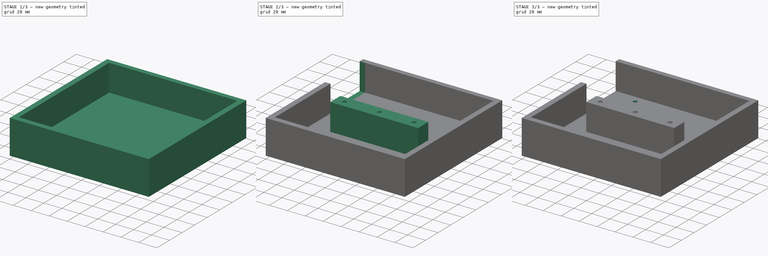
[diagram: build sequence overview — one tinted view per stage of 3, left to right]
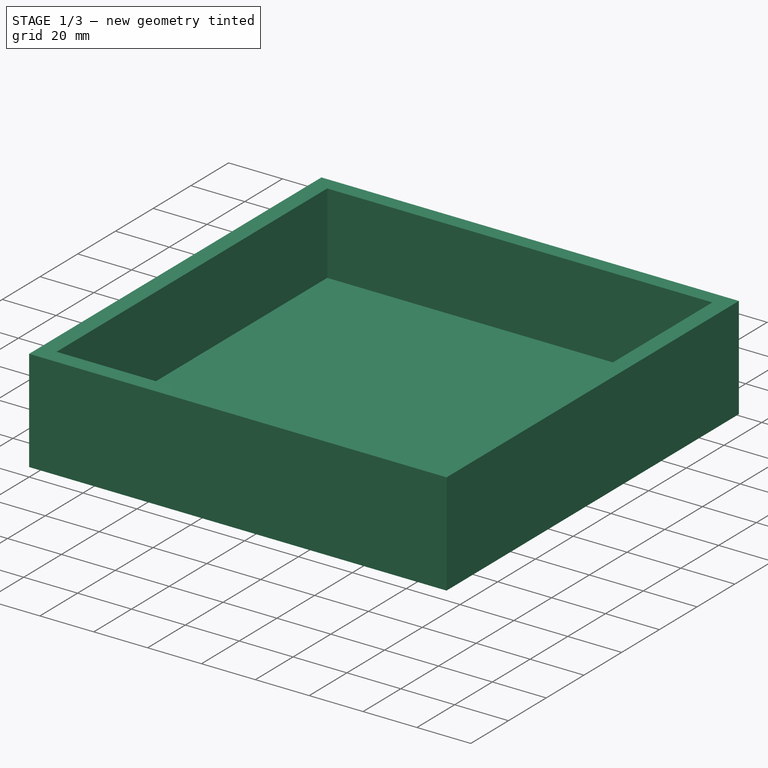
[diagram: stage 1 of 3 — iso view after this stage's code; geometry added in this stage tinted green]
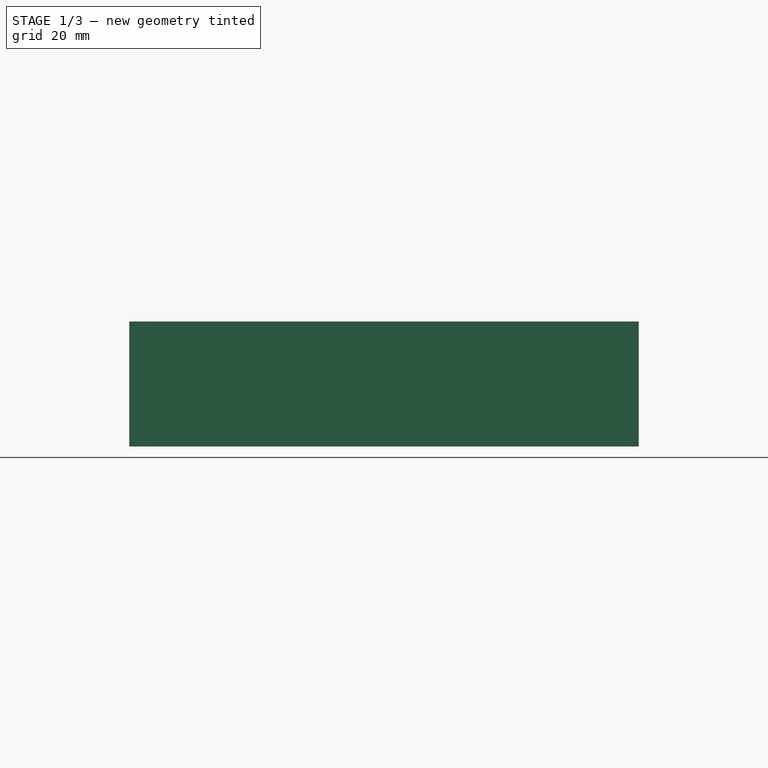
[diagram: stage 1 of 3 — front view after this stage's code; geometry added in this stage tinted green]
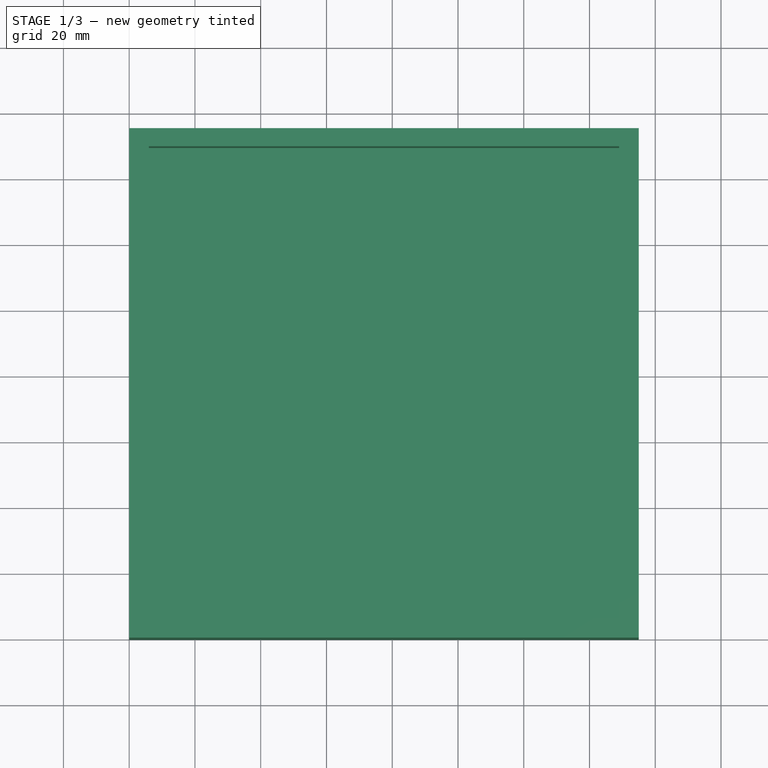
[diagram: stage 1 of 3 — top view after this stage's code; geometry added in this stage tinted green]
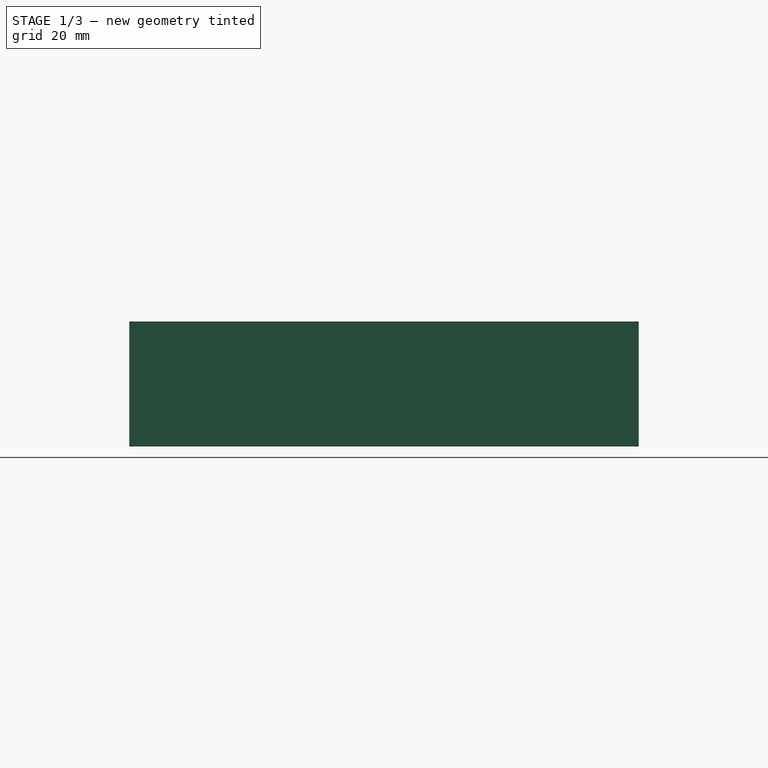
[diagram: stage 1 of 3 — right view after this stage's code; geometry added in this stage tinted green]
FCSTD DOCUMENT  (FreeCAD 0.20R29177 +426 (Git))
Label: controllerbody
License: All rights reserved
LicenseURL: http://en.wikipedia.org/wiki/All_rights_reserved
objects: Sketcher::SketchObject×7, PartDesign::Pocket×5, PartDesign::Pad×2, App::Link×1, PartDesign::Body×1
note: 22 computed .brp shape members not serialized (recipe doc carries the construction recipe); baked Part::Feature solids carry a one-line shape summary decoded from their .brp
EXTERNAL_REF file=controllerv2.FCStd obj=Body

FEATURE [Sketcher::SketchObject] Sketch
  FullyConstrained = true
  MapMode = 5
  Support = -> [XY_Plane]
  sketch-geometry (4):
    g0: LineSegment StartX=0 StartY=0 StartZ=0 EndX=155 EndY=0 EndZ=0
    g1: LineSegment StartX=155 StartY=0 StartZ=0 EndX=155 EndY=155 EndZ=0
    g2: LineSegment StartX=155 StartY=155 StartZ=0 EndX=0 EndY=155 EndZ=0
    g3: LineSegment StartX=0 StartY=155 StartZ=0 EndX=0 EndY=0 EndZ=0
  constraints (11):
    c: Coincident(g0,g1)
    c: Coincident(g1,g2)
    c: Coincident(g2,g3)
    c: Coincident(g3,g0)
    c: Horizontal(g0)
    c: Horizontal(g2)
    c: Vertical(g1)
    c: Vertical(g3)
    c: Coincident(g0,g-1)
    c: DistanceX(g2,g2) = 155
    c: DistanceY(g3,g3) = 155
FEATURE [PartDesign::Pad] Pad
  Direction = (0,0,1)
  Length = 38
  Length2 = 10
  Profile = -> Sketch
  ReferenceAxis = -> Sketch [N_Axis]
  Type = 0
FEATURE [Sketcher::SketchObject] Sketch001
  ExternalGeometry = -> [Pad]
  FullyConstrained = true
  MapMode = 5
  Placement = pos=(0,0,38) rot=(0,0,1;0rad)
  Support = -> [Pad]
  sketch-geometry (4):
    g0: LineSegment StartX=6 StartY=6 StartZ=0 EndX=149 EndY=6 EndZ=0
    g1: LineSegment StartX=149 StartY=6 StartZ=0 EndX=149 EndY=149.5 EndZ=0
    g2: LineSegment StartX=149 StartY=149.5 StartZ=0 EndX=6 EndY=149.5 EndZ=0
    g3: LineSegment StartX=6 StartY=149.5 StartZ=0 EndX=6 EndY=6 EndZ=0
  constraints (12):
    c: Coincident(g0,g1)
    c: Coincident(g1,g2)
    c: Coincident(g2,g3)
    c: Coincident(g3,g0)
    c: Horizontal(g0)
    c: Horizontal(g2)
    c: Vertical(g1)
    c: Vertical(g3)
    c: DistanceX(g-1,g0) = 6
    c: DistanceX(g1,g-3) = 6
    c: DistanceY(g1,g-3) = 5.5
    c: DistanceY(g-1,g0) = 6
FEATURE [PartDesign::Pocket] Pocket
  BaseFeature = -> Pad
  Direction = (0,0,-1)
  Length = 30
  Length2 = 5
  Profile = -> Sketch001
  ReferenceAxis = -> Sketch001 [N_Axis]
  Type = 0
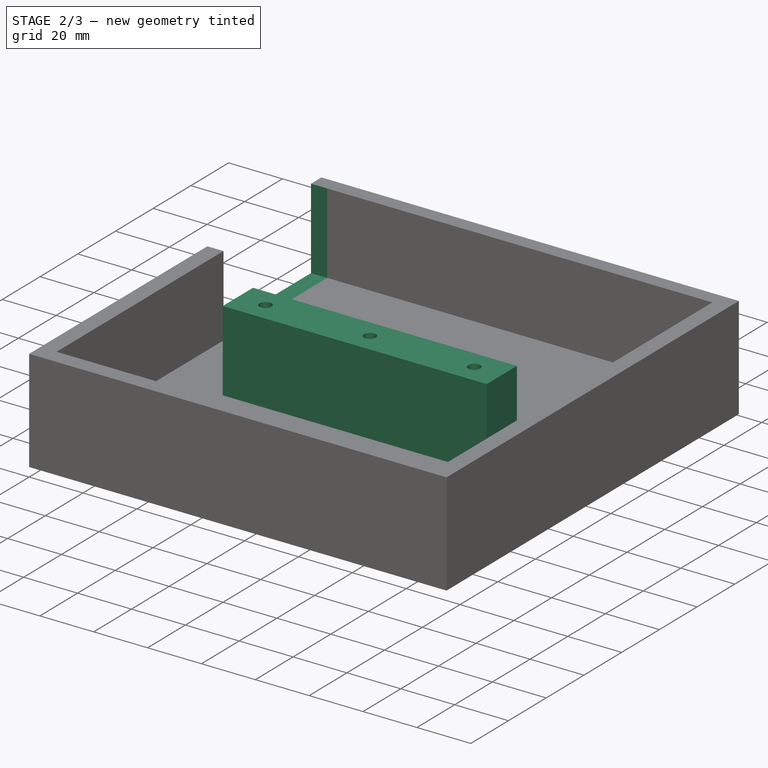
[diagram: stage 2 of 3 — iso view after this stage's code; geometry added in this stage tinted green]
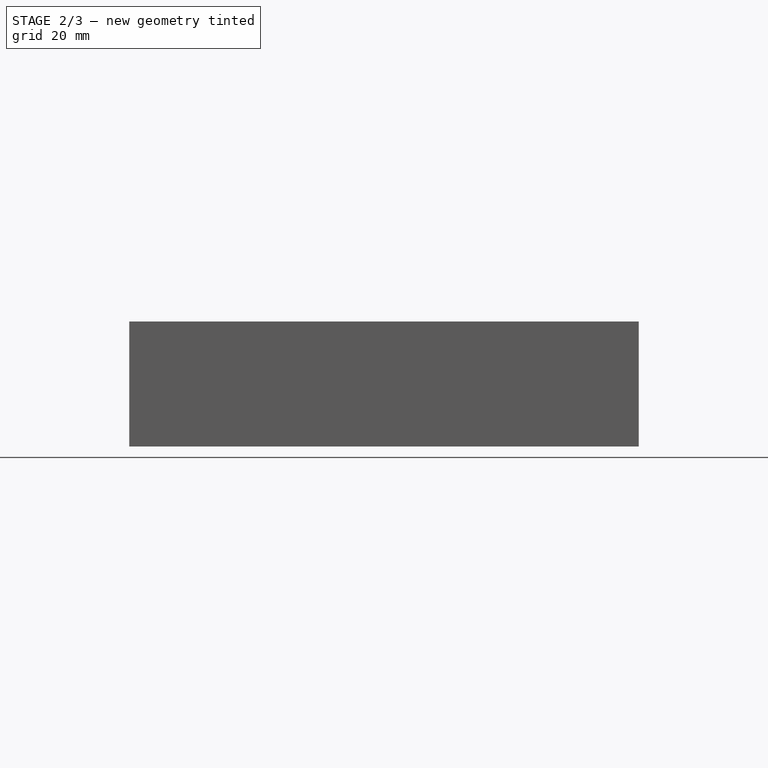
[diagram: stage 2 of 3 — front view after this stage's code; geometry added in this stage tinted green]
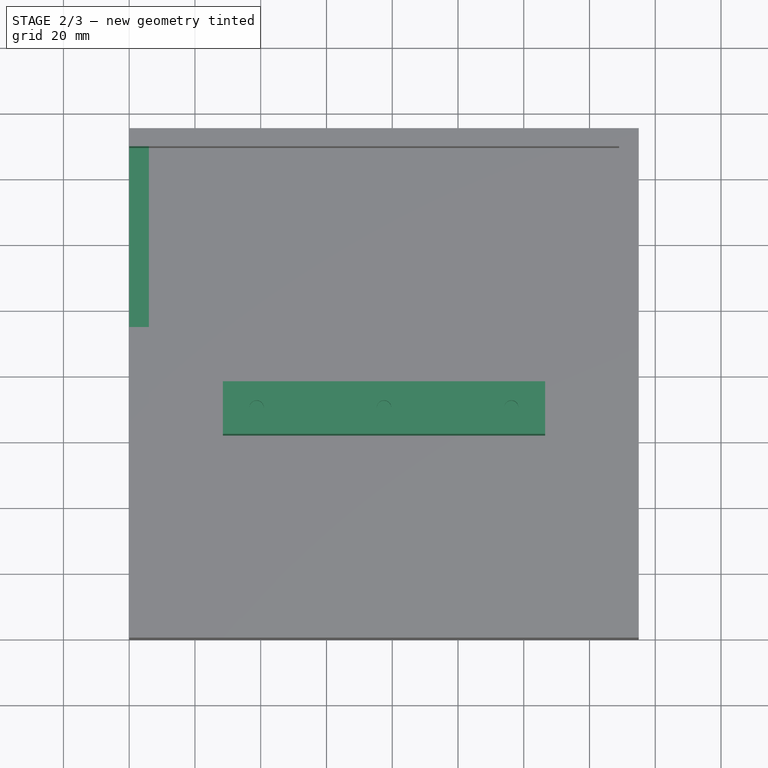
[diagram: stage 2 of 3 — top view after this stage's code; geometry added in this stage tinted green]
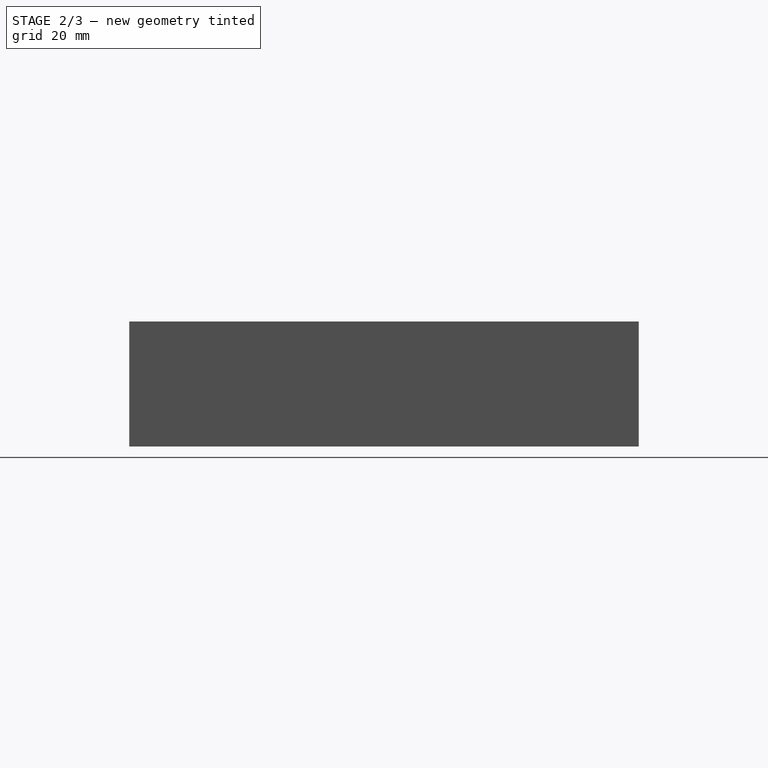
[diagram: stage 2 of 3 — right view after this stage's code; geometry added in this stage tinted green]
FEATURE [Sketcher::SketchObject] Sketch002
  ExternalGeometry = -> [Pocket]
  FullyConstrained = true
  MapMode = 5
  Placement = pos=(0,0,8) rot=(0,0,1;0rad)
  Support = -> [Pocket]
  sketch-geometry (7):
    g0: LineSegment StartX=28.5 StartY=78 StartZ=0 EndX=126.5 EndY=78 EndZ=0
    g1: LineSegment StartX=126.5 StartY=78 StartZ=0 EndX=126.5 EndY=62 EndZ=0
    g2: LineSegment StartX=126.5 StartY=62 StartZ=0 EndX=28.5 EndY=62 EndZ=0
    g3: LineSegment StartX=28.5 StartY=78 StartZ=0 EndX=28.5 EndY=70 EndZ=0
    g4: LineSegment StartX=28.5 StartY=70 StartZ=0 EndX=28.5 EndY=62 EndZ=0
    g5: LineSegment StartX=126.5 StartY=62 StartZ=0 EndX=155 EndY=62 EndZ=0
    g6: LineSegment StartX=28.5 StartY=62 StartZ=0 EndX=0 EndY=62 EndZ=0
  constraints (21):
    c: Coincident(g0,g1)
    c: Coincident(g1,g2)
    c: Horizontal(g0)
    c: Horizontal(g2)
    c: Vertical(g1)
    c: Coincident(g3,g0)
    c: Coincident(g4,g3)
    c: Coincident(g4,g2)
    c: Vertical(g3)
    c: Vertical(g4)
    c: Equal(g3,g4)
    c: DistanceY(g-1,g3) = 70
    c: DistanceX(g0,g0) = 98
    c: Coincident(g5,g1)
    c: Horizontal(g5)
    c: Coincident(g6,g2)
    c: Horizontal(g6)
    c: Vertical(g6,g-1)
    c: Vertical(g-3,g5)
    c: Equal(g6,g5)
    c: DistanceY(g1,g1) = 16
FEATURE [PartDesign::Pad] Pad001
  BaseFeature = -> Pocket
  Direction = (0,0,1)
  Length = 30
  Length2 = 10
  Profile = -> Sketch002
  ReferenceAxis = -> Sketch002 [N_Axis]
  Type = 0
FEATURE [App::Link] Link
  LinkPlacement = pos=(-3.66568e-05,-7.10192e-06,40.1) rot=(0.57735,0.57735,0.57735;4.18879rad)
  LinkedObject = -> <external controllerv2.FCStd>#Body
  Placement = pos=(-3.66568e-05,-7.10192e-06,40.1) rot=(0.57735,0.57735,0.57735;4.18879rad)
FEATURE [Sketcher::SketchObject] Sketch003
  ExternalGeometry = -> [Pad001]
  FullyConstrained = true
  MapMode = 5
  Placement = pos=(0,0,38) rot=(0,0,1;0rad)
  Support = -> [Pad001]
  sketch-geometry (7):
    g0: Circle CenterX=38.75 CenterY=70 CenterZ=0 NormalX=0 NormalY=0 NormalZ=1 AngleXU=0 Radius=2.2
    g1: Circle CenterX=77.5 CenterY=70 CenterZ=0 NormalX=0 NormalY=0 NormalZ=1 AngleXU=0 Radius=2.2
    g2: Circle CenterX=116.25 CenterY=70 CenterZ=0 NormalX=0 NormalY=0 NormalZ=1 AngleXU=0 Radius=2.2
    g3: LineSegment StartX=38.75 StartY=70 StartZ=0 EndX=0 EndY=70 EndZ=0
    g4: LineSegment StartX=38.75 StartY=70 StartZ=0 EndX=77.5 EndY=70 EndZ=0
    g5: LineSegment StartX=77.5 StartY=70 StartZ=0 EndX=116.25 EndY=70 EndZ=0
    g6: LineSegment StartX=116.25 StartY=70 StartZ=0 EndX=155 EndY=70 EndZ=0
  constraints (19):
    c: Horizontal(g0,g-3)
    c: Horizontal(g0,g1)
    c: Horizontal(g1,g2)
    c: Radius(g0) = 2.2
    c: Equal(g0,g1)
    c: Equal(g1,g2)
    c: Coincident(g3,g0)
    c: PointOnObject(g3,g-2)
    c: Horizontal(g3)
    c: Coincident(g4,g0)
    c: Coincident(g4,g1)
    c: Coincident(g5,g1)
    c: Coincident(g5,g2)
    c: Equal(g4,g3)
    c: Equal(g4,g5)
    c: Coincident(g6,g2)
    c: Horizontal(g6)
    c: Vertical(g6,g-4)
    c: Equal(g6,g5)
FEATURE [PartDesign::Pocket] Pocket001
  BaseFeature = -> Pad001
  Direction = (0,0,-1)
  Length = 6
  Length2 = 5
  Profile = -> Sketch003
  ReferenceAxis = -> Sketch003 [N_Axis]
  Type = 0
FEATURE [Sketcher::SketchObject] Sketch004
  ExternalGeometry = -> [Pocket001]
  FullyConstrained = true
  MapMode = 5
  Placement = pos=(0,0,38) rot=(0,0,1;0rad)
  Support = -> [Pocket001]
  sketch-geometry (4):
    g0: LineSegment StartX=0 StartY=149.5 StartZ=0 EndX=6 EndY=149.5 EndZ=0
    g1: LineSegment StartX=6 StartY=149.5 StartZ=0 EndX=6 EndY=94.5 EndZ=0
    g2: LineSegment StartX=6 StartY=94.5 StartZ=0 EndX=0 EndY=94.5 EndZ=0
    g3: LineSegment StartX=0 StartY=94.5 StartZ=0 EndX=0 EndY=149.5 EndZ=0
  constraints (12):
    c: Coincident(g0,g1)
    c: Coincident(g1,g2)
    c: Coincident(g2,g3)
    c: Coincident(g3,g0)
    c: Horizontal(g0)
    c: Horizontal(g2)
    c: Vertical(g1)
    c: Vertical(g3)
    c: PointOnObject(g0,g-4)
    c: PointOnObject(g1,g-3)
    c: Horizontal(g-3,g0)
    c: DistanceY(g3,g3) = 55
FEATURE [PartDesign::Pocket] Pocket002
  BaseFeature = -> Pocket001
  Direction = (0,0,-1)
  Length = 0
  Length2 = 5
  Profile = -> Sketch004
  ReferenceAxis = -> Sketch004 [N_Axis]
  Type = 3
  UpToFace = -> Pocket001 [Face11]
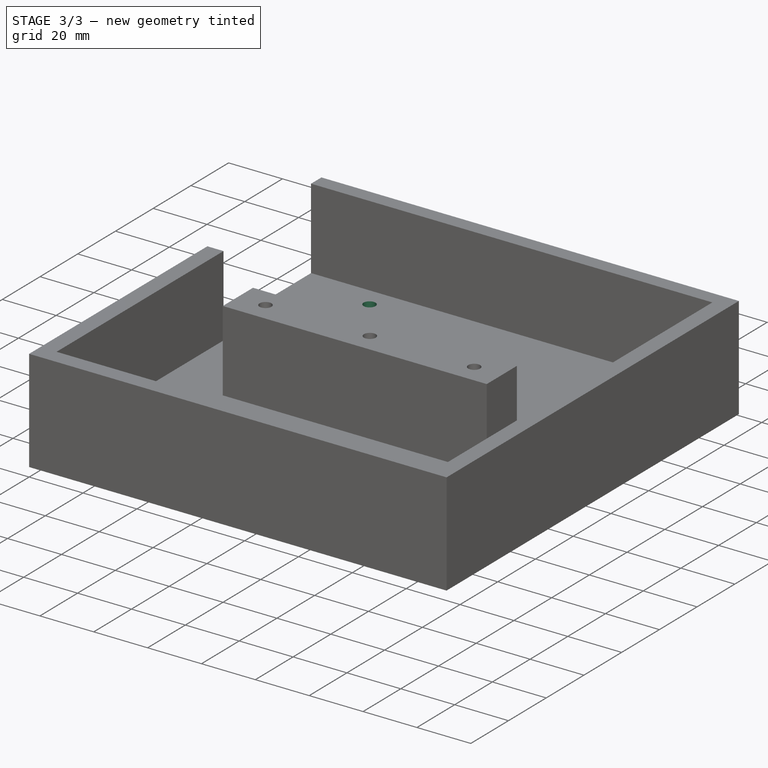
[diagram: stage 3 of 3 — iso view after this stage's code; geometry added in this stage tinted green]
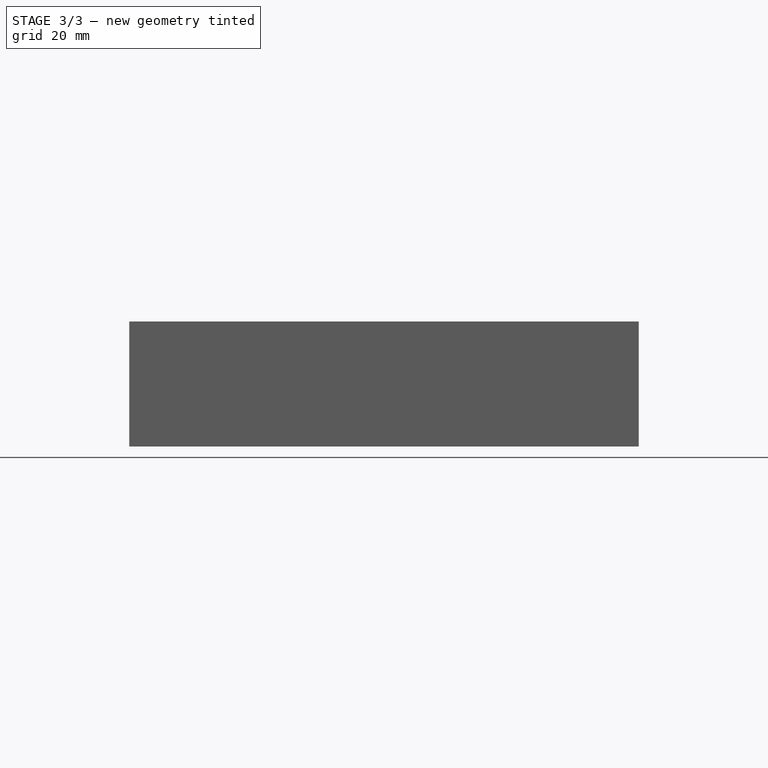
[diagram: stage 3 of 3 — front view after this stage's code; geometry added in this stage tinted green]
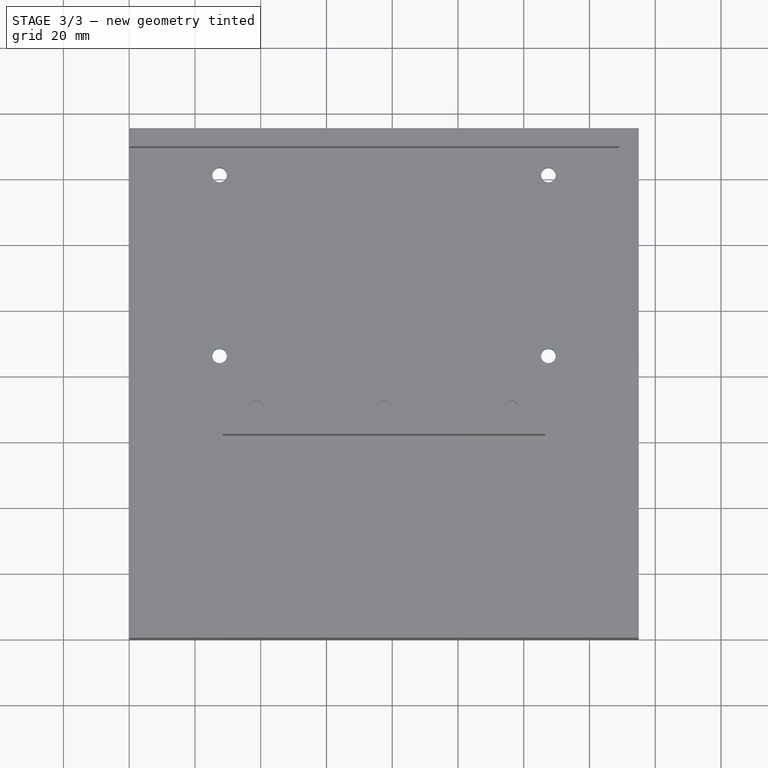
[diagram: stage 3 of 3 — top view after this stage's code; geometry added in this stage tinted green]
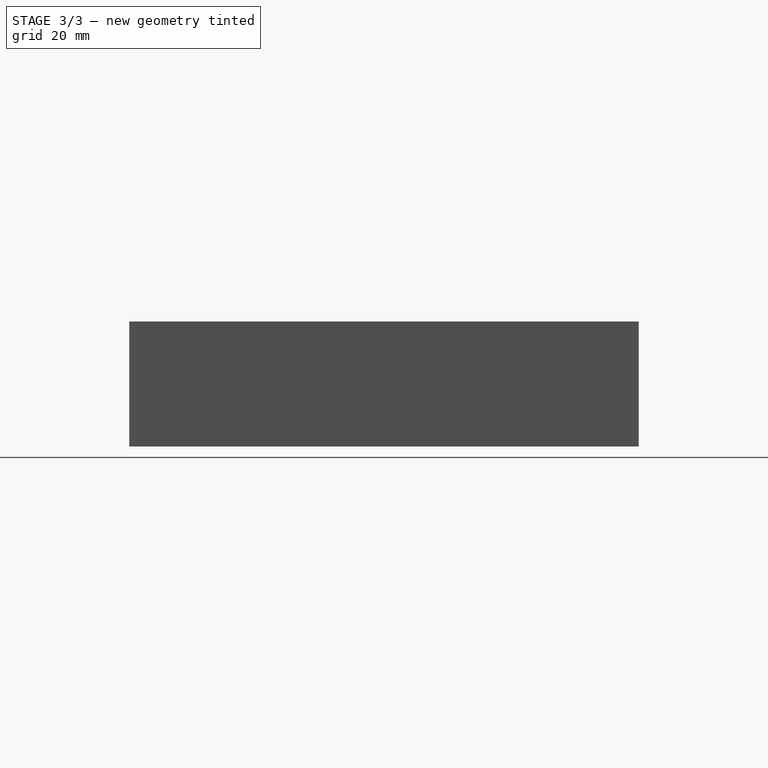
[diagram: stage 3 of 3 — right view after this stage's code; geometry added in this stage tinted green]
FEATURE [Sketcher::SketchObject] Sketch005
  ExternalGeometry = -> [Pocket002]
  FullyConstrained = true
  MapMode = 5
  Placement = pos=(0,0,0) rot=(1,0,0;3.14159rad)
  Support = -> [Pocket002]
  sketch-geometry (23):
    g0: Circle CenterX=25.8333 CenterY=-130 CenterZ=0 NormalX=0 NormalY=0 NormalZ=1 AngleXU=0 Radius=2.2
    g1: Circle CenterX=51.6667 CenterY=-130 CenterZ=0 NormalX=0 NormalY=0 NormalZ=1 AngleXU=0 Radius=2.2
    g2: Circle CenterX=77.5 CenterY=-130 CenterZ=0 NormalX=0 NormalY=0 NormalZ=1 AngleXU=0 Radius=2.2
    g3: Circle CenterX=103.333 CenterY=-130 CenterZ=0 NormalX=0 NormalY=0 NormalZ=1 AngleXU=0 Radius=2.2
    g4: Circle CenterX=129.167 CenterY=-130 CenterZ=0 NormalX=0 NormalY=0 NormalZ=1 AngleXU=0 Radius=2.2
    g5: Circle CenterX=25.8333 CenterY=-77.5 CenterZ=0 NormalX=0 NormalY=0 NormalZ=1 AngleXU=0 Radius=2.2
    g6: Circle CenterX=51.6667 CenterY=-77.5 CenterZ=0 NormalX=0 NormalY=0 NormalZ=1 AngleXU=0 Radius=2.2
    g7: Circle CenterX=77.5 CenterY=-77.5 CenterZ=0 NormalX=0 NormalY=0 NormalZ=1 AngleXU=0 Radius=2.2
    g8: Circle CenterX=103.333 CenterY=-77.5 CenterZ=0 NormalX=0 NormalY=0 NormalZ=1 AngleXU=0 Radius=2.2
    g9: Circle CenterX=129.167 CenterY=-77.5 CenterZ=0 NormalX=0 NormalY=0 NormalZ=1 AngleXU=0 Radius=2.2
    g10: Circle CenterX=25.8333 CenterY=-25 CenterZ=0 NormalX=0 NormalY=0 NormalZ=1 AngleXU=0 Radius=2.2
    g11: Circle CenterX=51.6667 CenterY=-25 CenterZ=0 NormalX=0 NormalY=0 NormalZ=1 AngleXU=0 Radius=2.2
    g12: Circle CenterX=77.5 CenterY=-25 CenterZ=0 NormalX=0 NormalY=0 NormalZ=1 AngleXU=0 Radius=2.2
    g13: Circle CenterX=103.333 CenterY=-25 CenterZ=0 NormalX=0 NormalY=0 NormalZ=1 AngleXU=0 Radius=2.2
    g14: Circle CenterX=129.167 CenterY=-25 CenterZ=0 NormalX=0 NormalY=0 NormalZ=1 AngleXU=0 Radius=2.2
    g15: LineSegment StartX=0 StartY=-155 StartZ=0 EndX=25.8333 EndY=-155 EndZ=0
    g16: LineSegment StartX=25.8333 StartY=-155 StartZ=0 EndX=51.6667 EndY=-155 EndZ=0
    g17: LineSegment StartX=51.6667 StartY=-155 StartZ=0 EndX=77.5 EndY=-155 EndZ=0
    g18: LineSegment StartX=77.5 StartY=-155 StartZ=0 EndX=103.333 EndY=-155 EndZ=0
    g19: LineSegment StartX=103.333 StartY=-155 StartZ=0 EndX=129.167 EndY=-155 EndZ=0
    g20: LineSegment StartX=129.167 StartY=-155 StartZ=0 EndX=155 EndY=-155 EndZ=0
    g21: LineSegment StartX=25.8333 StartY=-25 StartZ=0 EndX=25.8333 EndY=-77.5 EndZ=0
    g22: LineSegment StartX=25.8333 StartY=-77.5 StartZ=0 EndX=25.8333 EndY=-130 EndZ=0
  constraints (67):
    c: Horizontal(g7,g6)
    c: Horizontal(g6,g5)
    c: Horizontal(g7,g8)
    c: Horizontal(g8,g9)
    c: Horizontal(g0,g1)
    c: Horizontal(g1,g2)
    c: Horizontal(g2,g3)
    c: Horizontal(g3,g4)
    c: PointOnObject(g15,g-2)
    c: Coincident(g16,g15)
    c: Horizontal(g16)
    c: Coincident(g17,g16)
    c: Horizontal(g17)
    c: Coincident(g18,g17)
    c: Horizontal(g18)
    c: Coincident(g19,g18)
    c: Coincident(g20,g19)
    c: Coincident(g20,g-3)
    c: Horizontal(g15)
    c: Horizontal(g19)
    c: Horizontal(g20)
    c: Equal(g16,g15)
    c: Equal(g16,g17)
    c: Equal(g18,g19)
    c: Equal(g19,g20)
    c: Equal(g20,g16)
    c: Vertical(g0,g5)
    c: Vertical(g5,g10)
    c: Vertical(g0,g15)
    c: Vertical(g16,g1)
    c: Vertical(g1,g6)
    c: Vertical(g6,g11)
    c: Vertical(g12,g7)
    c: Vertical(g7,g2)
    c: Vertical(g17,g2)
    c: Vertical(g18,g3)
    c: Vertical(g3,g8)
    c: Vertical(g8,g13)
    c: Vertical(g14,g9)
    c: Vertical(g9,g4)
    c: Vertical(g4,g19)
    c: Horizontal(g10,g11)
    c: Horizontal(g11,g12)
    c: Horizontal(g12,g13)
    c: Horizontal(g13,g14)
    c: Equal(g10,g11)
    c: Equal(g11,g12)
    c: Equal(g12,g13)
    c: Equal(g13,g14)
    c: Equal(g9,g14)
    c: Equal(g9,g4)
    c: Equal(g9,g8)
    c: Equal(g8,g7)
    c: Equal(g7,g6)
    c: Equal(g6,g5)
    c: Equal(g0,g1)
    c: Equal(g1,g2)
    c: Equal(g2,g3)
    c: Equal(g3,g4)
    c: Radius(g5) = 2.2
    c: DistanceY(g15,g0) = 25
    c: DistanceY(g10,g-1) = 25
    c: Coincident(g21,g10)
    c: Coincident(g21,g5)
    c: Coincident(g22,g5)
    c: Coincident(g22,g0)
    c: Equal(g21,g22)
FEATURE [PartDesign::Pocket] Pocket003
  BaseFeature = -> Pocket002
  Direction = (0,0,1)
  Length = 7
  Length2 = 5
  Profile = -> Sketch005
  ReferenceAxis = -> Sketch005 [N_Axis]
  Type = 0
FEATURE [Sketcher::SketchObject] Sketch006
  ExternalGeometry = -> [Pocket003]
  FullyConstrained = true
  MapMode = 5
  Placement = pos=(0,0,8) rot=(0,0,1;0rad)
  Support = -> [Pocket003]
  sketch-geometry (12):
    g0: LineSegment StartX=27.5 StartY=141.25 StartZ=0 EndX=127.5 EndY=141.25 EndZ=0
    g1: LineSegment StartX=127.5 StartY=141.25 StartZ=0 EndX=127.5 EndY=86.25 EndZ=0
    g2: LineSegment StartX=127.5 StartY=86.25 StartZ=0 EndX=27.5 EndY=86.25 EndZ=0
    g3: LineSegment StartX=27.5 StartY=86.25 StartZ=0 EndX=27.5 EndY=141.25 EndZ=0
    g4: Circle CenterX=27.5 CenterY=141.25 CenterZ=0 NormalX=0 NormalY=0 NormalZ=1 AngleXU=0 Radius=2.2
    g5: Circle CenterX=127.5 CenterY=141.25 CenterZ=0 NormalX=0 NormalY=0 NormalZ=1 AngleXU=0 Radius=2.2
    g6: Circle CenterX=127.5 CenterY=86.25 CenterZ=0 NormalX=0 NormalY=0 NormalZ=1 AngleXU=0 Radius=2.2
    g7: Circle CenterX=27.5 CenterY=86.25 CenterZ=0 NormalX=0 NormalY=0 NormalZ=1 AngleXU=0 Radius=2.2
    g8: LineSegment StartX=127.5 StartY=86.25 StartZ=0 EndX=155 EndY=86.25 EndZ=0
    g9: LineSegment StartX=27.5 StartY=86.25 StartZ=0 EndX=0 EndY=86.25 EndZ=0
    g10: LineSegment StartX=27.5 StartY=141.25 StartZ=0 EndX=27.5 EndY=149.5 EndZ=0
    g11: LineSegment StartX=28.5 StartY=78 StartZ=0 EndX=28.5 EndY=86.25 EndZ=0
  constraints (32):
    c: Coincident(g0,g1)
    c: Coincident(g1,g2)
    c: Coincident(g2,g3)
    c: Coincident(g3,g0)
    c: Horizontal(g0)
    c: Horizontal(g2)
    c: Vertical(g1)
    c: Vertical(g3)
    c: Coincident(g4,g0)
    c: Coincident(g5,g0)
    c: Coincident(g6,g1)
    c: Coincident(g7,g2)
    c: DistanceX(g0,g0) = 100
    c: DistanceY(g3,g3) = 55
    c: Coincident(g8,g1)
    c: Horizontal(g8)
    c: Coincident(g9,g2)
    c: Horizontal(g9)
    c: Vertical(g9,g-1)
    c: Vertical(g-3,g8)
    c: Coincident(g10,g0)
    c: PointOnObject(g10,g-4)
    c: Vertical(g10)
    c: Equal(g9,g8)
    c: Coincident(g11,g-5)
    c: PointOnObject(g11,g2)
    c: Vertical(g11)
    c: Equal(g11,g10)
    c: Equal(g7,g4)
    c: Equal(g4,g5)
    c: Equal(g6,g5)
    c: Radius(g4) = 2.2
FEATURE [PartDesign::Pocket] Pocket004
  BaseFeature = -> Pocket003
  Direction = (0,0,-1)
  Length = 8
  Length2 = 5
  Profile = -> Sketch006
  ReferenceAxis = -> Sketch006 [N_Axis]
  Type = 0
FEATURE [PartDesign::Body] Body
  Group = -> [Sketch,Pad,Sketch001,Pocket,Sketch002,Pad001,Sketch003,Pocket001,Sketch004,Pocket002,Sketch005,Pocket003,Sketch006,Pocket004]
  Origin = -> Origin
  Tip = -> Pocket004
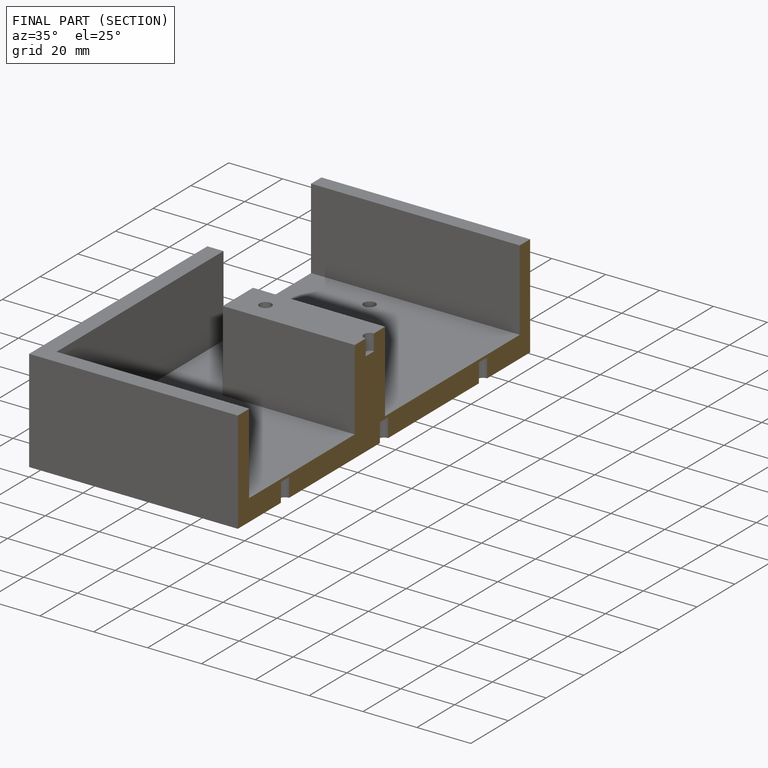
[diagram: finished part — half-section view (interior)]
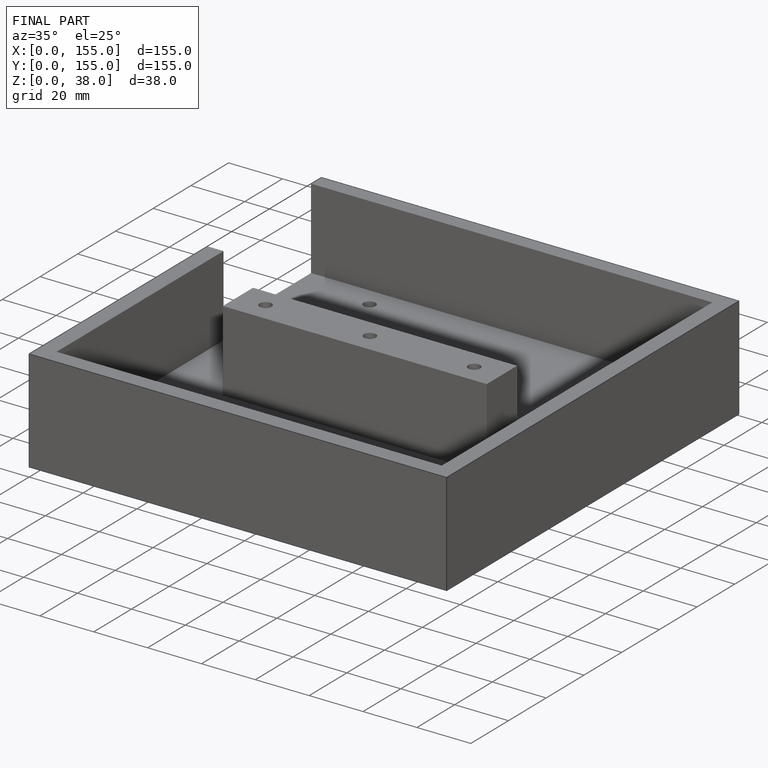
[diagram: finished part — iso view with bounding-box wireframe]
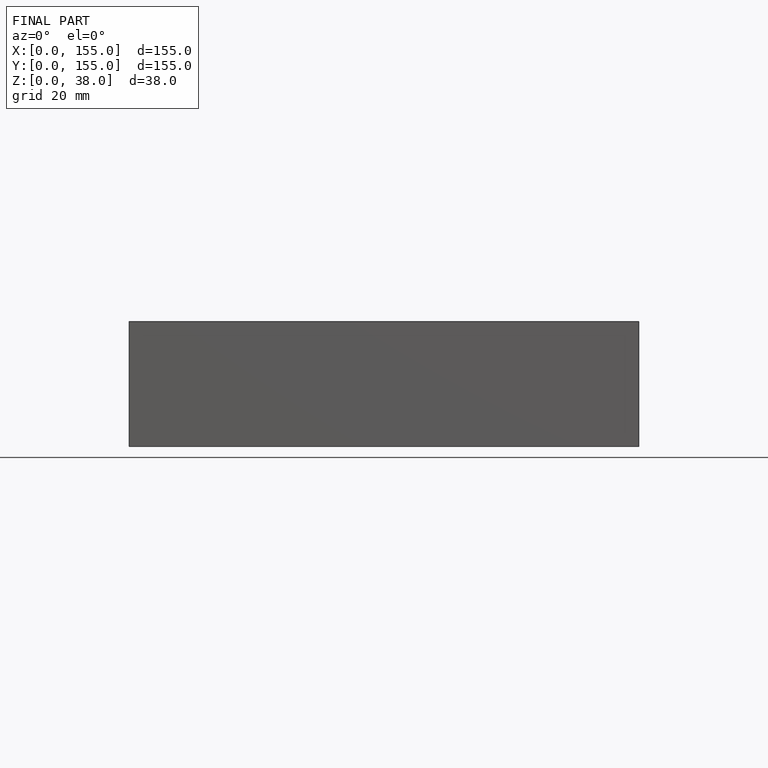
[diagram: finished part — front view with bounding-box wireframe]
